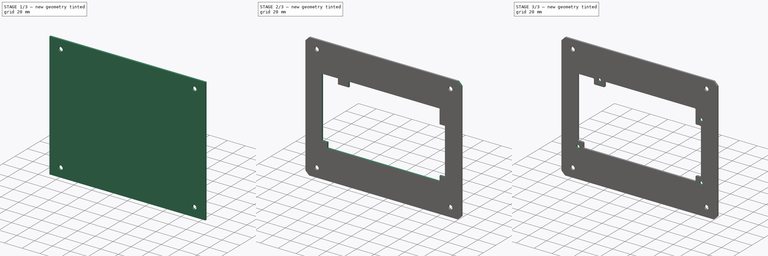
[diagram: build sequence overview — one tinted view per stage of 3, left to right]
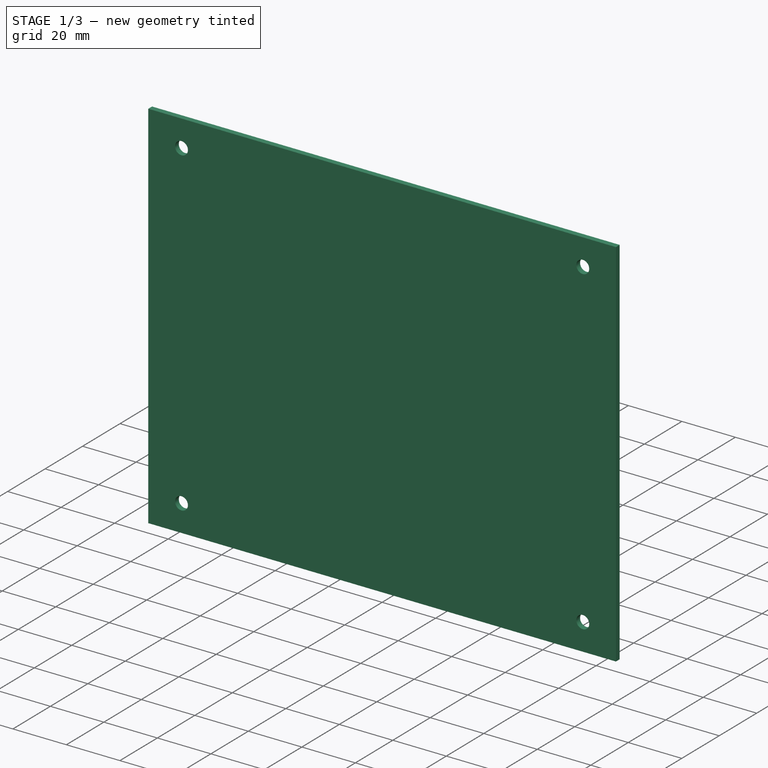
[diagram: stage 1 of 3 — iso view after this stage's code; geometry added in this stage tinted green]
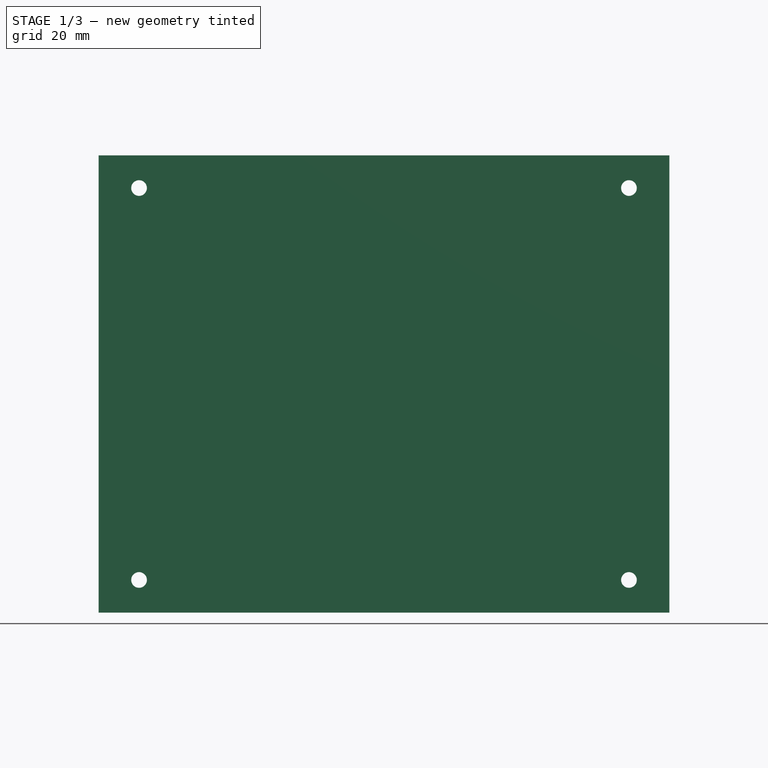
[diagram: stage 1 of 3 — front view after this stage's code; geometry added in this stage tinted green]
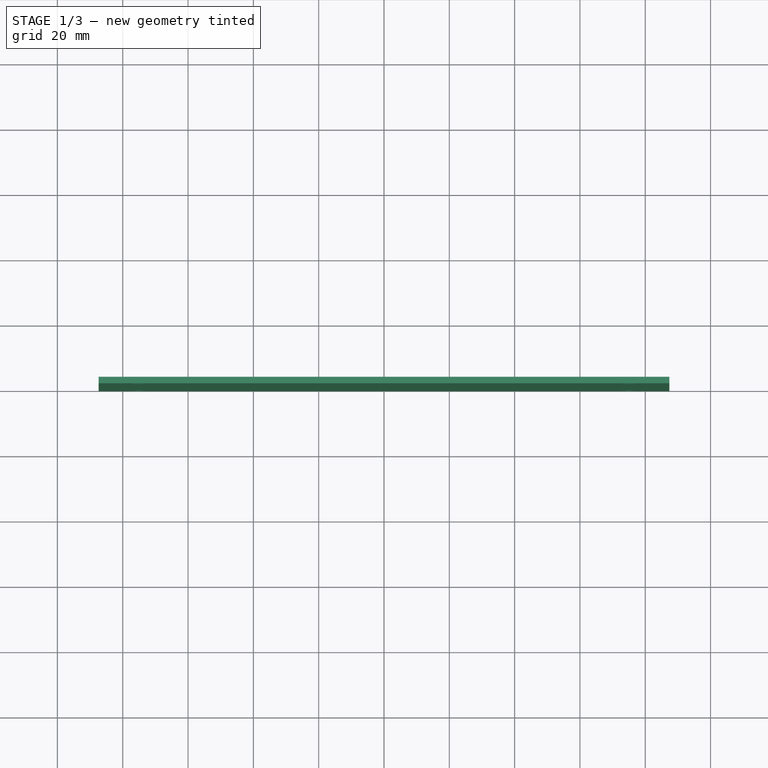
[diagram: stage 1 of 3 — top view after this stage's code; geometry added in this stage tinted green]
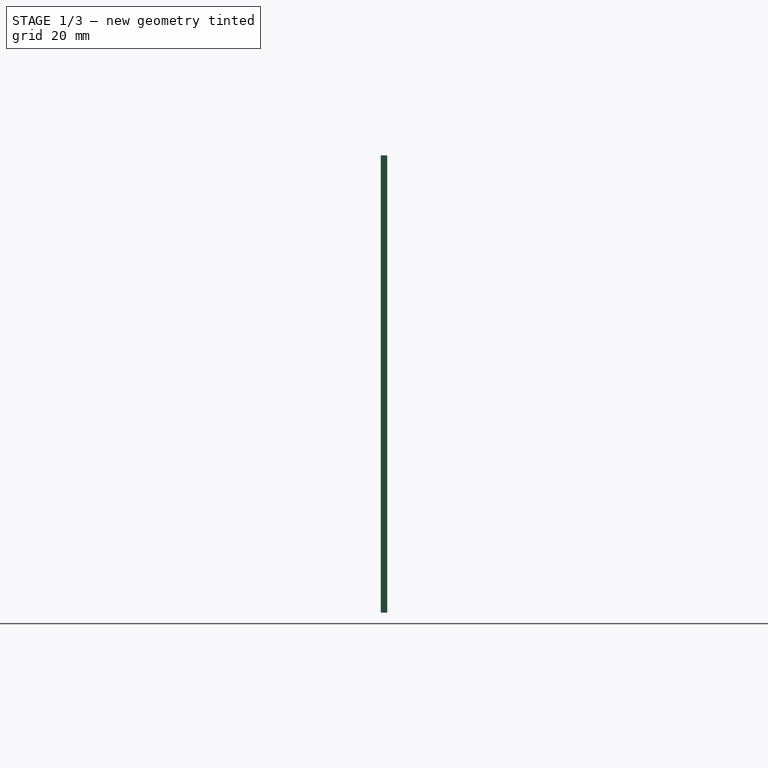
[diagram: stage 1 of 3 — right view after this stage's code; geometry added in this stage tinted green]
FCSTD DOCUMENT  (FreeCAD 1.0R39319 (Git))
Label: OCT-LFPNL-PB
License: Creative Commons Attribution 4.0
LicenseURL: https://creativecommons.org/licenses/by/4.0/
objects: Sketcher::SketchObject×4, PartDesign::Hole×2, App::Link×1, PartDesign::Pad×1, PartDesign::Chamfer×1, PartDesign::Pocket×1, PartDesign::Fillet×1, PartDesign::Body×1
note: 27 computed .brp shape members not serialized (recipe doc carries the construction recipe); baked Part::Feature solids carry a one-line shape summary decoded from their .brp
EXTERNAL_REF file=../master.FCStd obj=Spreadsheet

FEATURE [App::Link] Link  label="dims"
  LinkedObject = -> <external ../master.FCStd>#Spreadsheet
FEATURE [Sketcher::SketchObject] Sketch
  ArcFitTolerance = 1e-06
  AttachmentSupport = -> [XZ_Plane]
  FullyConstrained = true
  MakeInternals = false
  MapMode = 5
  Placement = pos=(0,0,0) rot=(1,0,0;1.5708rad)
  expr: Constraints[10] = <<dims>>.opFurnace
  sketch-geometry (5):
    g0: LineSegment StartX=-87.3991 StartY=-70 StartZ=0 EndX=87.3991 EndY=-70 EndZ=0
    g1: LineSegment StartX=87.3991 StartY=-70 StartZ=0 EndX=87.3991 EndY=70 EndZ=0
    g2: LineSegment StartX=87.3991 StartY=70 StartZ=0 EndX=-87.3991 EndY=70 EndZ=0
    g3: LineSegment StartX=-87.3991 StartY=70 StartZ=0 EndX=-87.3991 EndY=-70 EndZ=0
    g4: GeomPoint [constr] X=0 Y=0 Z=0
  constraints (12):
    c: Coincident(g0,g1)
    c: Coincident(g1,g2)
    c: Coincident(g2,g3)
    c: Coincident(g3,g0)
    c: Horizontal(g0)
    c: Horizontal(g2)
    c: Vertical(g1)
    c: Vertical(g3)
    c: Symmetric(g2,g0,g4)
    c: Coincident(g4,g-1)
    c: DistanceX(g2,g2) = 174.798
    c: DistanceY(g3,g3) = 140
FEATURE [PartDesign::Pad] Pad
  Direction = (0,-1,2e-16)
  Length = 2
  Length2 = 10
  Placement = pos=(0,0,0) rot=(1,0,0;1.5708rad)
  Profile = -> Sketch
  ReferenceAxis = -> Sketch [N_Axis]
  Reversed = true
  Suppressed = false
  Type = 0
  expr: Length = <<dims>>.tLowerPanel
FEATURE [Sketcher::SketchObject] Sketch001
  ArcFitTolerance = 1e-06
  AttachmentSupport = -> [XZ_Plane]
  FullyConstrained = true
  MakeInternals = false
  MapMode = 5
  Placement = pos=(0,0,0) rot=(1,0,0;1.5708rad)
  sketch-geometry (9):
    g0: LineSegment [constr] StartX=-75 StartY=-60 StartZ=0 EndX=75 EndY=-60 EndZ=0
    g1: LineSegment [constr] StartX=75 StartY=-60 StartZ=0 EndX=75 EndY=60 EndZ=0
    g2: LineSegment [constr] StartX=75 StartY=60 StartZ=0 EndX=-75 EndY=60 EndZ=0
    g3: LineSegment [constr] StartX=-75 StartY=60 StartZ=0 EndX=-75 EndY=-60 EndZ=0
    g4: GeomPoint [constr] X=0 Y=0 Z=0
    g5: Circle CenterX=-75 CenterY=60 CenterZ=0 NormalX=0 NormalY=0 NormalZ=1 AngleXU=0 Radius=2
    g6: Circle CenterX=75 CenterY=60 CenterZ=0 NormalX=0 NormalY=0 NormalZ=1 AngleXU=0 Radius=2
    g7: Circle CenterX=75 CenterY=-60 CenterZ=0 NormalX=0 NormalY=0 NormalZ=1 AngleXU=0 Radius=2
    g8: Circle CenterX=-75 CenterY=-60 CenterZ=0 NormalX=0 NormalY=0 NormalZ=1 AngleXU=0 Radius=2
  constraints (20):
    c: Coincident(g0,g1)
    c: Coincident(g1,g2)
    c: Coincident(g2,g3)
    c: Coincident(g3,g0)
    c: Horizontal(g0)
    c: Horizontal(g2)
    c: Vertical(g1)
    c: Vertical(g3)
    c: Symmetric(g2,g0,g4)
    c: Coincident(g4,g-1)
    c: DistanceX(g2,g2) = 150
    c: DistanceY(g3,g3) = 120
    c: Coincident(g5,g2)
    c: Coincident(g6,g1)
    c: Coincident(g7,g0)
    c: Coincident(g8,g0)
    c: Equal(g5,g6)
    c: Equal(g6,g7)
    c: Equal(g7,g8)
    c: Diameter(g5) = 4
FEATURE [PartDesign::Hole] Hole  label="panel mount holes"
  BaseFeature = -> Pad
  CustomThreadClearance = 0
  Depth = 599.768
  DepthType = 1
  Diameter = 4.8
  DrillForDepth = false
  DrillPoint = 1
  DrillPointAngle = 118
  HoleCutCountersinkAngle = 90
  HoleCutCustomValues = false
  HoleCutDepth = 0
  HoleCutDiameter = 6.1
  HoleCutType = 0
  ModelThread = false
  Placement = pos=(0,0,0) rot=(1,0,0;1.5708rad)
  Profile = -> Sketch001
  Suppressed = false
  Tapered = false
  TaperedAngle = 90
  ThreadClass = 0
  ThreadDepth = 599.768
  ThreadDepthType = 0
  ThreadDirection = 0
  ThreadFit = 2
  ThreadSize = 11
  ThreadType = 1
  Threaded = false
  UseCustomThreadClearance = false
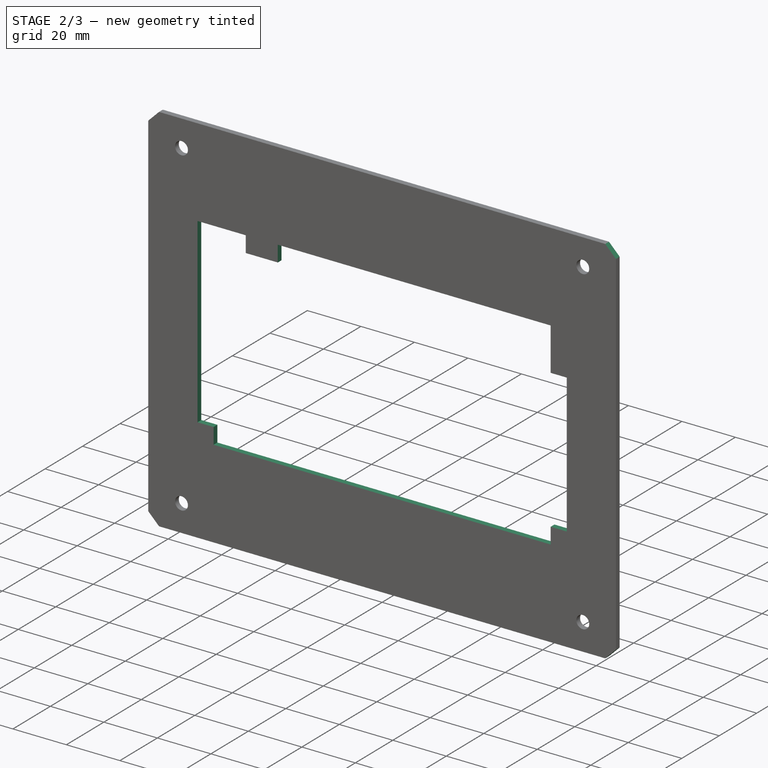
[diagram: stage 2 of 3 — iso view after this stage's code; geometry added in this stage tinted green]
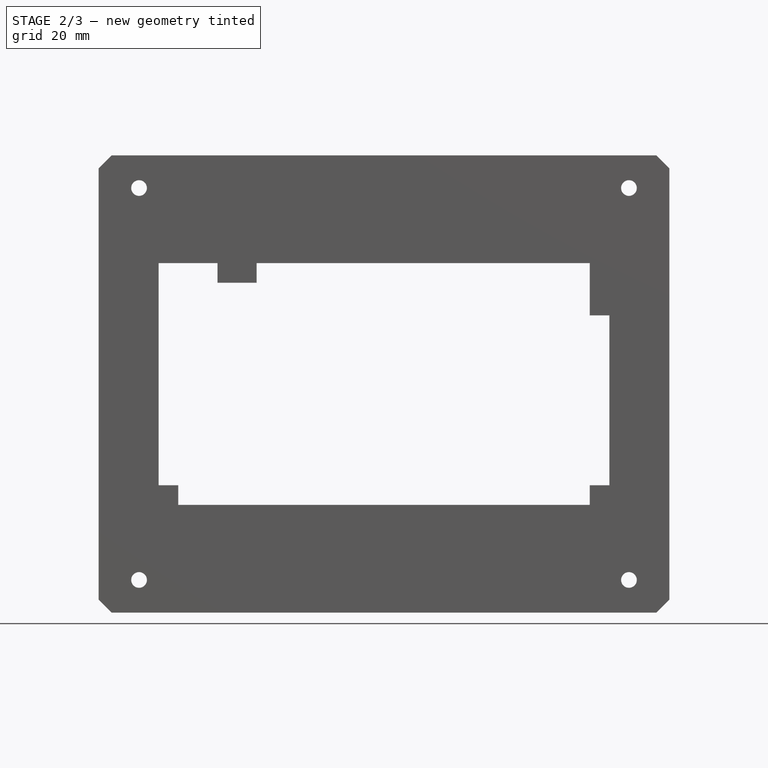
[diagram: stage 2 of 3 — front view after this stage's code; geometry added in this stage tinted green]
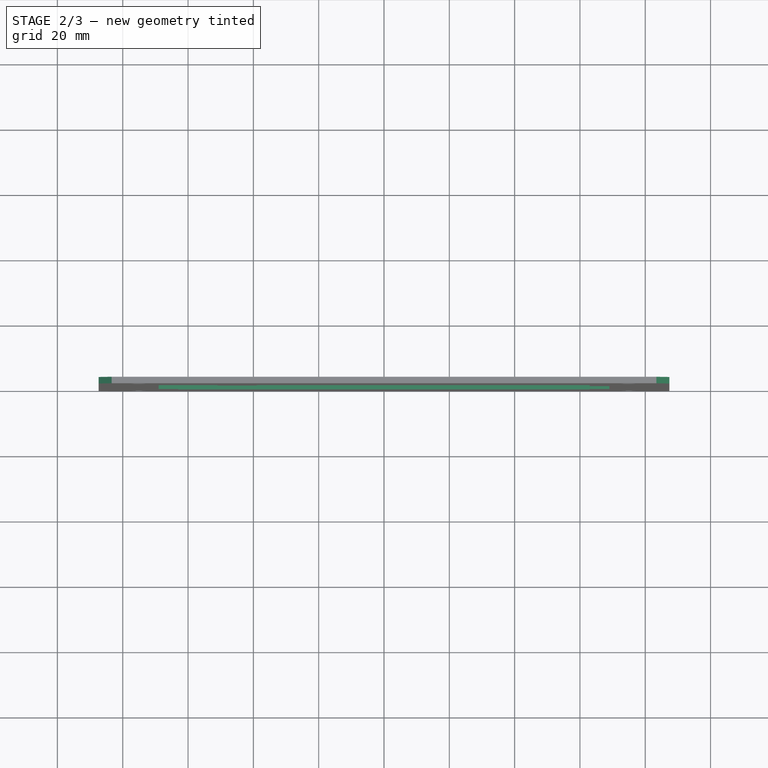
[diagram: stage 2 of 3 — top view after this stage's code; geometry added in this stage tinted green]
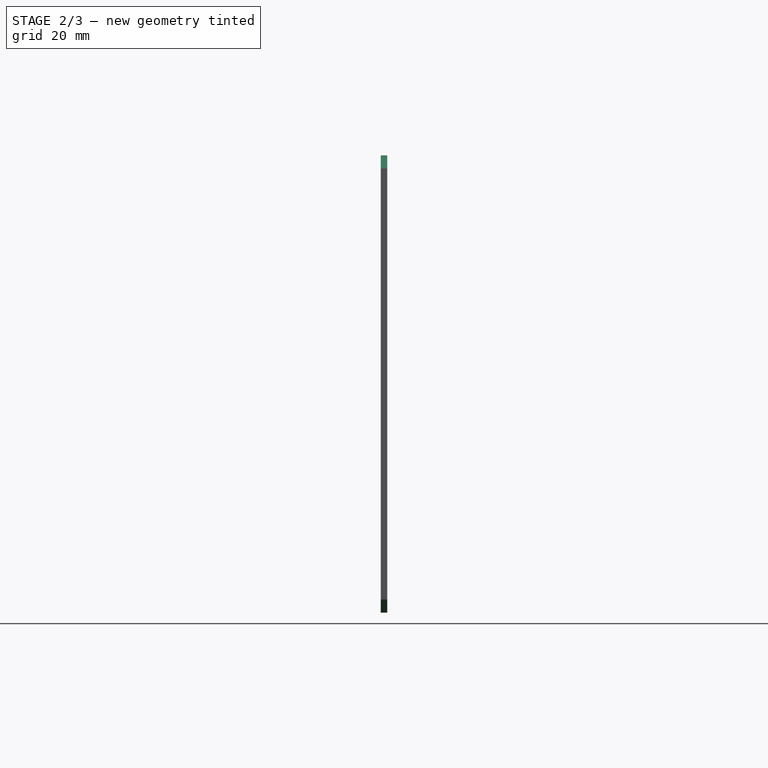
[diagram: stage 2 of 3 — right view after this stage's code; geometry added in this stage tinted green]
FEATURE [PartDesign::Chamfer] Chamfer  label="edge chamfers"
  Angle = 45
  Base = -> Hole [Edge5,Edge8,Edge2,Edge1]
  BaseFeature = -> Hole
  ChamferType = 0
  FlipDirection = false
  Placement = pos=(0,0,0) rot=(1,0,0;1.5708rad)
  Size = 4
  Size2 = 1
  SupportTransform = false
  Suppressed = false
  UseAllEdges = false
FEATURE [Sketcher::SketchObject] Sketch002
  ArcFitTolerance = 1e-06
  AttachmentSupport = -> [XZ_Plane]
  FullyConstrained = true
  MakeInternals = false
  MapMode = 5
  Placement = pos=(0,0,0) rot=(1,0,0;1.5708rad)
  sketch-geometry (30):
    g0: LineSegment [constr] StartX=-75 StartY=-43 StartZ=0 EndX=75 EndY=-43 EndZ=0
    g1: LineSegment [constr] StartX=75 StartY=-43 StartZ=0 EndX=75 EndY=43 EndZ=0
    g2: LineSegment [constr] StartX=75 StartY=43 StartZ=0 EndX=-75 EndY=43 EndZ=0
    g3: LineSegment [constr] StartX=-75 StartY=43 StartZ=0 EndX=-75 EndY=-43 EndZ=0
    g4: GeomPoint [constr] X=0 Y=0 Z=0
    g5: Circle [constr] CenterX=69 CenterY=27 CenterZ=0 NormalX=0 NormalY=0 NormalZ=1 AngleXU=0 Radius=2.25
    g6: Circle [constr] CenterX=-45 CenterY=37 CenterZ=0 NormalX=0 NormalY=0 NormalZ=1 AngleXU=0 Radius=2.25
    g7: Circle [constr] CenterX=-69 CenterY=-37 CenterZ=0 NormalX=0 NormalY=0 NormalZ=1 AngleXU=0 Radius=2.25
    g8: Circle [constr] CenterX=69 CenterY=-37 CenterZ=0 NormalX=0 NormalY=0 NormalZ=1 AngleXU=0 Radius=2.25
    g9: LineSegment [constr] StartX=69 StartY=27 StartZ=0 EndX=69 EndY=-37 EndZ=0
    g10: LineSegment [constr] StartX=69 StartY=-37 StartZ=0 EndX=-69 EndY=-37 EndZ=0
    g11: LineSegment StartX=-63 StartY=-37 StartZ=0 EndX=-63 EndY=-31 EndZ=0
    g12: LineSegment StartX=-63 StartY=-31 StartZ=0 EndX=-69 EndY=-31 EndZ=0
    g13: LineSegment StartX=-69 StartY=-31 StartZ=0 EndX=-69 EndY=37 EndZ=0
    g14: LineSegment StartX=-69 StartY=37 StartZ=0 EndX=-51 EndY=37 EndZ=0
    g15: LineSegment StartX=-51 StartY=37 StartZ=0 EndX=-51 EndY=31 EndZ=0
    g16: LineSegment StartX=-51 StartY=31 StartZ=0 EndX=-39 EndY=31 EndZ=0
    g17: LineSegment StartX=-39 StartY=31 StartZ=0 EndX=-39 EndY=37 EndZ=0
    g18: LineSegment StartX=-39 StartY=37 StartZ=0 EndX=63 EndY=37 EndZ=0
    g19: LineSegment StartX=63 StartY=37 StartZ=0 EndX=63 EndY=21 EndZ=0
    g20: LineSegment StartX=63 StartY=21 StartZ=0 EndX=69 EndY=21 EndZ=0
    g21: LineSegment StartX=69 StartY=21 StartZ=0 EndX=69 EndY=-31 EndZ=0
    g22: LineSegment StartX=69 StartY=-31 StartZ=0 EndX=63 EndY=-31 EndZ=0
    g23: LineSegment StartX=63 StartY=-31 StartZ=0 EndX=63 EndY=-37 EndZ=0
    g24: LineSegment StartX=63 StartY=-37 StartZ=0 EndX=-63 EndY=-37 EndZ=0
    g25: LineSegment [constr] StartX=-51 StartY=37 StartZ=0 EndX=-45 EndY=37 EndZ=0
    g26: LineSegment [constr] StartX=-39 StartY=37 StartZ=0 EndX=-45 EndY=37 EndZ=0
    g27: LineSegment [constr] StartX=-45 StartY=37 StartZ=0 EndX=-45 EndY=31 EndZ=0
    g28: LineSegment [constr] StartX=69 StartY=27 StartZ=0 EndX=63 EndY=27 EndZ=0
    g29: LineSegment [constr] StartX=-69 StartY=-37 StartZ=0 EndX=-69 EndY=-31 EndZ=0
  constraints (80):
    c: Coincident(g0,g1)
    c: Coincident(g1,g2)
    c: Coincident(g2,g3)
    c: Coincident(g3,g0)
    c: Horizontal(g0)
    c: Horizontal(g2)
    c: Vertical(g1)
    c: Vertical(g3)
    c: Symmetric(g2,g0,g4)
    c: Coincident(g4,g-1)
    c: DistanceY(g1,g1) = 86
    c: DistanceX(g2,g2) = 150
    c: Equal(g8,g5)
    c: Equal(g5,g6)
    c: Equal(g6,g7)
    c: Coincident(g9,g5)
    c: Coincident(g9,g8)
    c: Vertical(g9)
    c: Coincident(g10,g8)
    c: Coincident(g10,g7)
    c: DistanceX(g10,g10) = 138
    c: DistanceY(g9,g9) = 64
    c: DistanceY(g5,g1) = 16
    c: Symmetric(g7,g8,g-2)
    c: DistanceX(g6,g5) = 114
    c: DistanceY(g6,g2) = 6
    c: Diameter(g6) = 4.5
    c: Coincident(g11,g12)
    c: Coincident(g12,g13)
    c: Vertical(g13)
    c: Coincident(g13,g14)
    c: Coincident(g14,g15)
    c: Coincident(g15,g16)
    c: Coincident(g16,g17)
    c: Coincident(g17,g18)
    c: Horizontal(g18)
    c: Coincident(g18,g19)
    c: Coincident(g19,g20)
    c: Coincident(g20,g21)
    c: Vertical(g21)
    c: Coincident(g21,g22)
    c: Coincident(g22,g23)
    c: Coincident(g23,g24)
    c: Coincident(g24,g11)
    c: PointOnObject(g11,g10)
    c: Horizontal(g24)
    c: Vertical(g23)
    c: Horizontal(g22)
    c: PointOnObject(g20,g9)
    c: Horizontal(g20)
    c: Vertical(g19)
    c: Vertical(g17)
    c: Vertical(g15)
    c: Horizontal(g14)
    c: Horizontal(g16)
    c: Coincident(g25,g14)
    c: Coincident(g25,g6)
    c: Coincident(g26,g17)
    c: Coincident(g26,g6)
    c: Horizontal(g26)
    c: Horizontal(g25)
    c: Equal(g26,g25)
    c: Horizontal(g12)
    c: Vertical(g11)
    c: PointOnObject(g7,g13)
    c: DistanceX(g25,g25) = 6
    c: Coincident(g27,g6)
    c: Symmetric(g16,g16,g27)
    c: Equal(g27,g25)
    c: Coincident(g28,g5)
    c: Horizontal(g28)
    c: DistanceY(g20,g5) = 6
    c: DistanceX(g28,g28) = 6
    c: PointOnObject(g28,g19)
    c: Coincident(g29,g7)
    c: Coincident(g29,g12)
    c: DistanceY(g29,g29) = 6
    c: Equal(g12,g11)
    c: DistanceX(g23,g8) = 6
    c: Equal(g23,g22)
FEATURE [PartDesign::Pocket] Pocket  label="ATX cutout"
  BaseFeature = -> Chamfer
  Direction = (0,1,-2e-16)
  Length = 5
  Length2 = 5
  Placement = pos=(0,0,0) rot=(1,0,0;1.5708rad)
  Profile = -> Sketch002
  ReferenceAxis = -> Sketch002 [N_Axis]
  Refine = true
  Suppressed = false
  Type = 1
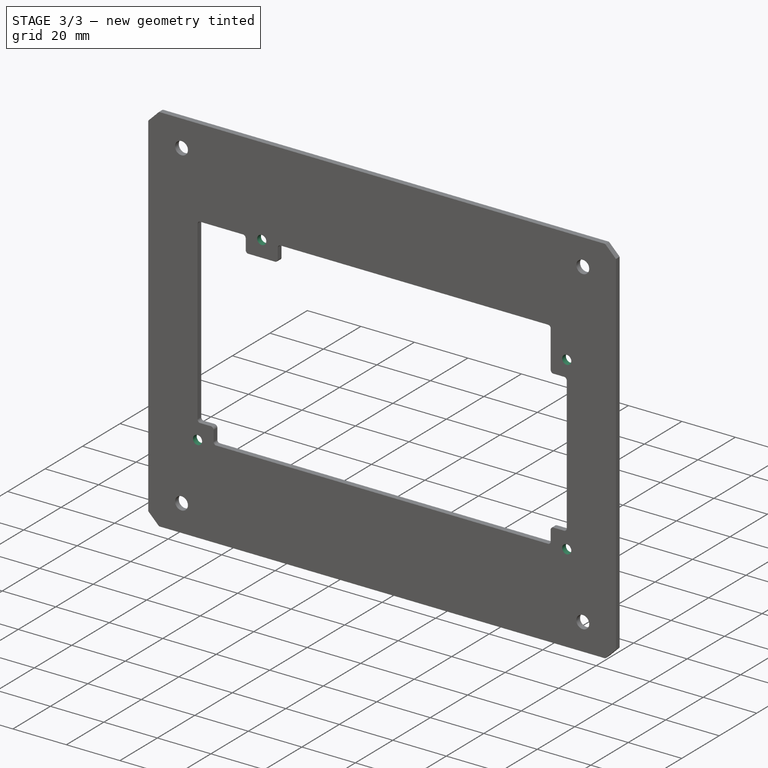
[diagram: stage 3 of 3 — iso view after this stage's code; geometry added in this stage tinted green]
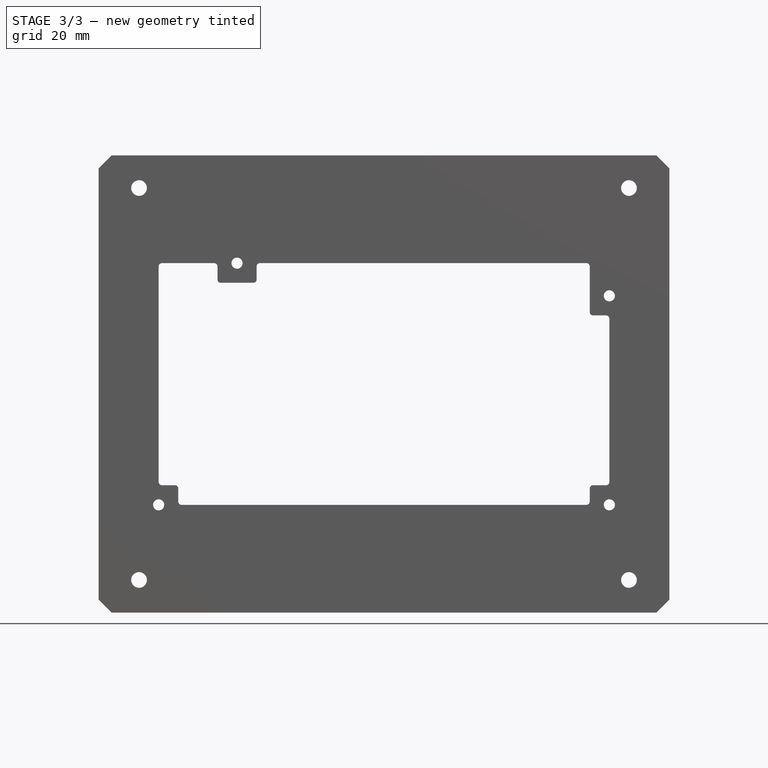
[diagram: stage 3 of 3 — front view after this stage's code; geometry added in this stage tinted green]
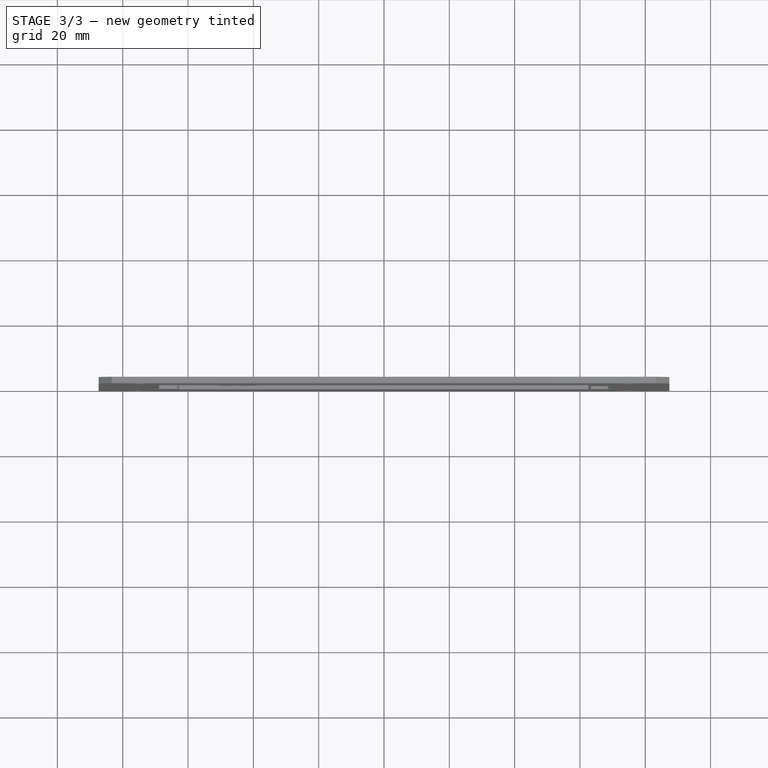
[diagram: stage 3 of 3 — top view after this stage's code; geometry added in this stage tinted green]
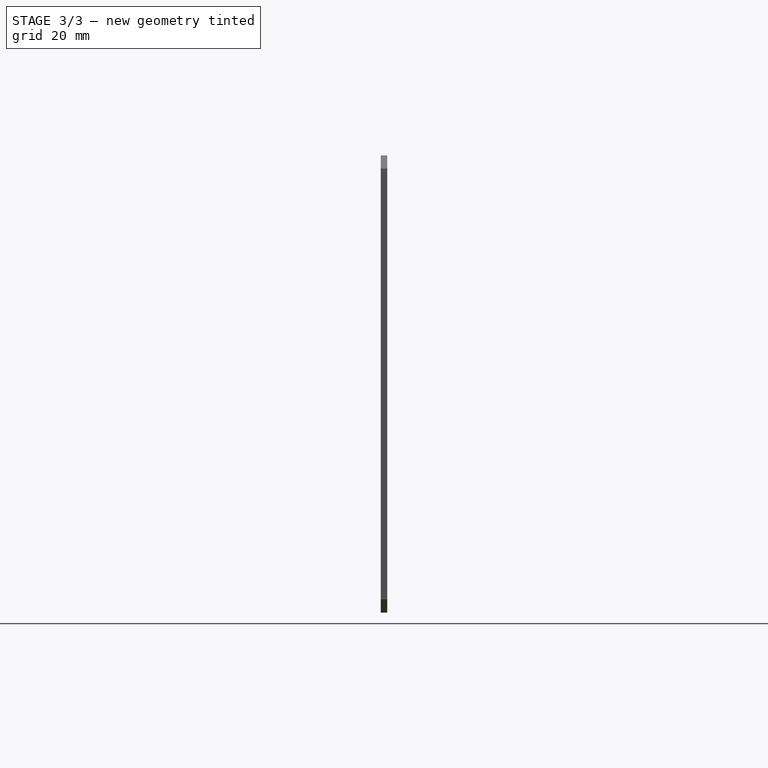
[diagram: stage 3 of 3 — right view after this stage's code; geometry added in this stage tinted green]
FEATURE [Sketcher::SketchObject] Sketch003
  ArcFitTolerance = 1e-06
  AttachmentSupport = -> [XZ_Plane]
  FullyConstrained = true
  MakeInternals = false
  MapMode = 5
  Placement = pos=(0,0,0) rot=(1,0,0;1.5708rad)
  sketch-geometry (11):
    g0: LineSegment [constr] StartX=-75 StartY=-43 StartZ=0 EndX=75 EndY=-43 EndZ=0
    g1: LineSegment [constr] StartX=75 StartY=-43 StartZ=0 EndX=75 EndY=43 EndZ=0
    g2: LineSegment [constr] StartX=75 StartY=43 StartZ=0 EndX=-75 EndY=43 EndZ=0
    g3: LineSegment [constr] StartX=-75 StartY=43 StartZ=0 EndX=-75 EndY=-43 EndZ=0
    g4: GeomPoint [constr] X=0 Y=0 Z=0
    g5: Circle CenterX=69 CenterY=27 CenterZ=0 NormalX=0 NormalY=0 NormalZ=1 AngleXU=0 Radius=2.25
    g6: Circle CenterX=69 CenterY=-37 CenterZ=0 NormalX=0 NormalY=0 NormalZ=1 AngleXU=0 Radius=2.25
    g7: Circle CenterX=-69 CenterY=-37 CenterZ=0 NormalX=0 NormalY=0 NormalZ=1 AngleXU=0 Radius=2.25
    g8: Circle CenterX=-45 CenterY=37 CenterZ=0 NormalX=0 NormalY=0 NormalZ=1 AngleXU=0 Radius=2.25
    g9: LineSegment [constr] StartX=-69 StartY=-37 StartZ=0 EndX=69 EndY=-37 EndZ=0
    g10: LineSegment [constr] StartX=69 StartY=-37 StartZ=0 EndX=69 EndY=27 EndZ=0
  constraints (27):
    c: Coincident(g0,g1)
    c: Coincident(g1,g2)
    c: Coincident(g2,g3)
    c: Coincident(g3,g0)
    c: Horizontal(g0)
    c: Horizontal(g2)
    c: Vertical(g1)
    c: Vertical(g3)
    c: Symmetric(g2,g0,g4)
    c: Coincident(g4,g-1)
    c: DistanceX(g2,g2) = 150
    c: DistanceY(g1,g1) = 86
    c: Equal(g8,g5)
    c: Equal(g5,g6)
    c: Equal(g6,g7)
    c: Diameter(g8) = 4.5
    c: DistanceY(g5,g1) = 16
    c: DistanceY(g6,g5) = 64
    c: DistanceX(g7,g6) = 138
    c: Coincident(g9,g7)
    c: Coincident(g9,g6)
    c: Coincident(g10,g6)
    c: Coincident(g10,g5)
    c: Vertical(g10)
    c: Symmetric(g7,g6,g-2)
    c: DistanceX(g8,g5) = 114
    c: DistanceY(g8,g2) = 6
FEATURE [PartDesign::Hole] Hole001  label="ATX holes"
  BaseFeature = -> Pocket
  CustomThreadClearance = 0
  Depth = 25
  DepthType = 0
  Diameter = 3.4
  DrillForDepth = false
  DrillPoint = 1
  DrillPointAngle = 118
  HoleCutCountersinkAngle = 90
  HoleCutCustomValues = false
  HoleCutDepth = 0
  HoleCutDiameter = 6.1
  HoleCutType = 0
  ModelThread = false
  Placement = pos=(0,0,0) rot=(1,0,0;1.5708rad)
  Profile = -> Sketch003
  Refine = true
  Suppressed = false
  Tapered = false
  TaperedAngle = 90
  ThreadClass = 0
  ThreadDepth = 25
  ThreadDepthType = 0
  ThreadDirection = 0
  ThreadFit = 0
  ThreadSize = 9
  ThreadType = 1
  Threaded = false
  UseCustomThreadClearance = false
FEATURE [PartDesign::Fillet] Fillet  label="ATX cutout fillet"
  Base = -> Hole001 [Edge84,Edge86,Edge82,Edge80,Edge78,Edge75,Edge76,Edge77,Edge79,Edge81,Edge83,Edge85,Edge87,Edge88]
  BaseFeature = -> Hole001
  Placement = pos=(0,0,0) rot=(1,0,0;1.5708rad)
  Radius = 1
  Refine = true
  SupportTransform = false
  Suppressed = false
  UseAllEdges = false
FEATURE [PartDesign::Body] Body  label="base panel"
  AllowCompound = false
  Group = -> [Sketch,Pad,Sketch001,Hole,Chamfer,Sketch002,Pocket,Sketch003,Hole001,Fillet]
  Origin = -> Origin
  Tip = -> Fillet
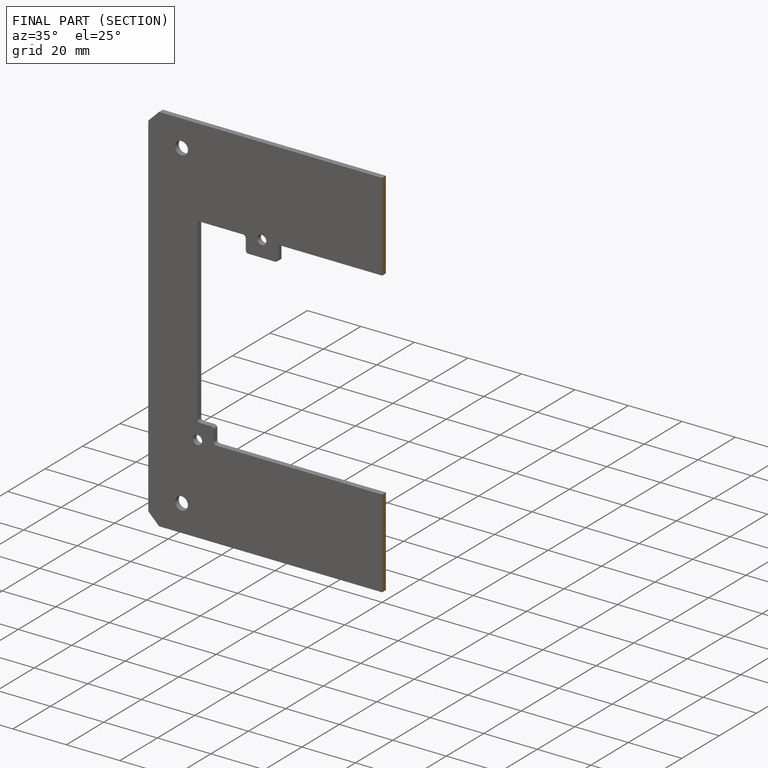
[diagram: finished part — half-section view (interior)]
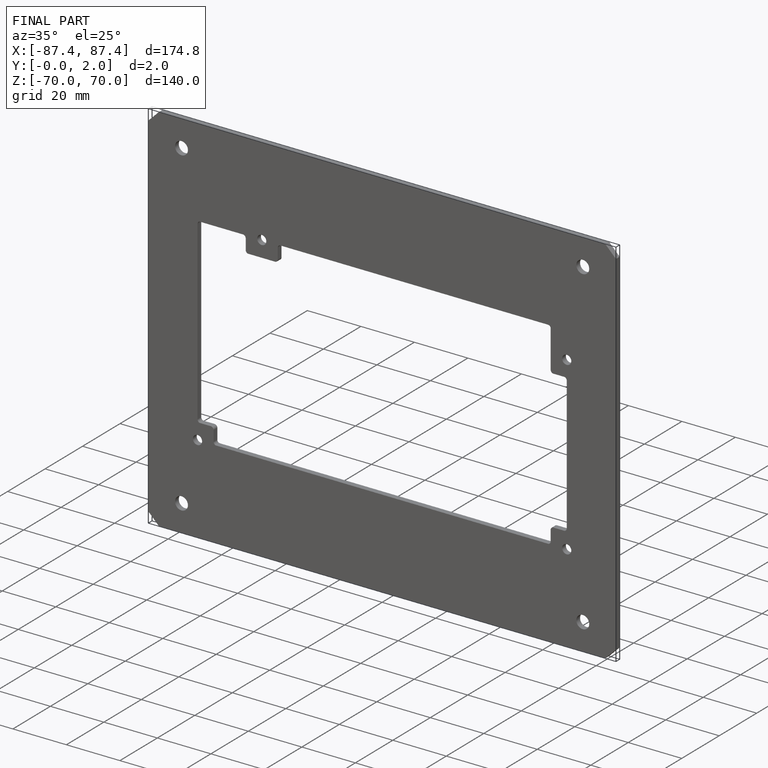
[diagram: finished part — iso view with bounding-box wireframe]
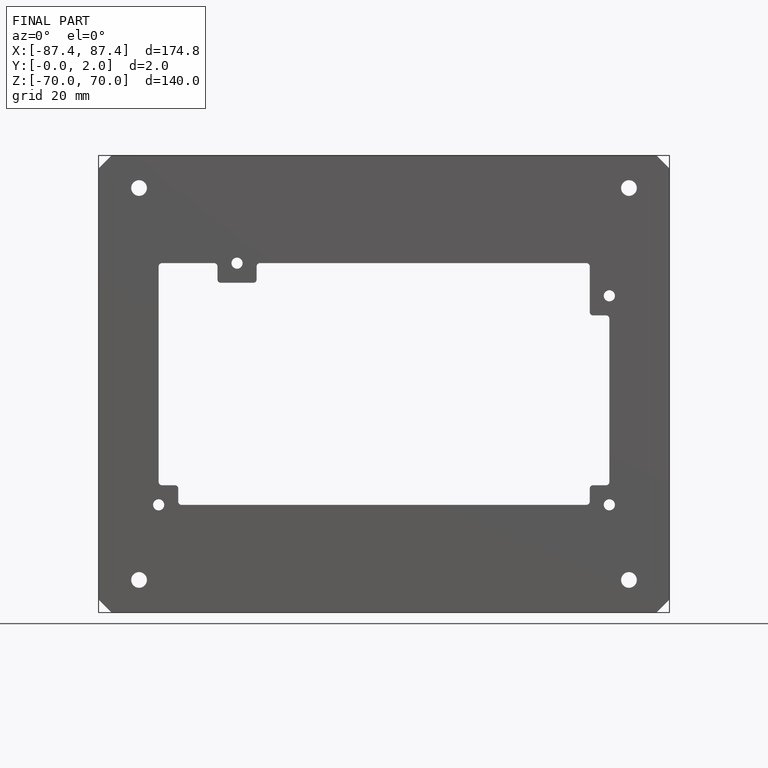
[diagram: finished part — front view with bounding-box wireframe]
